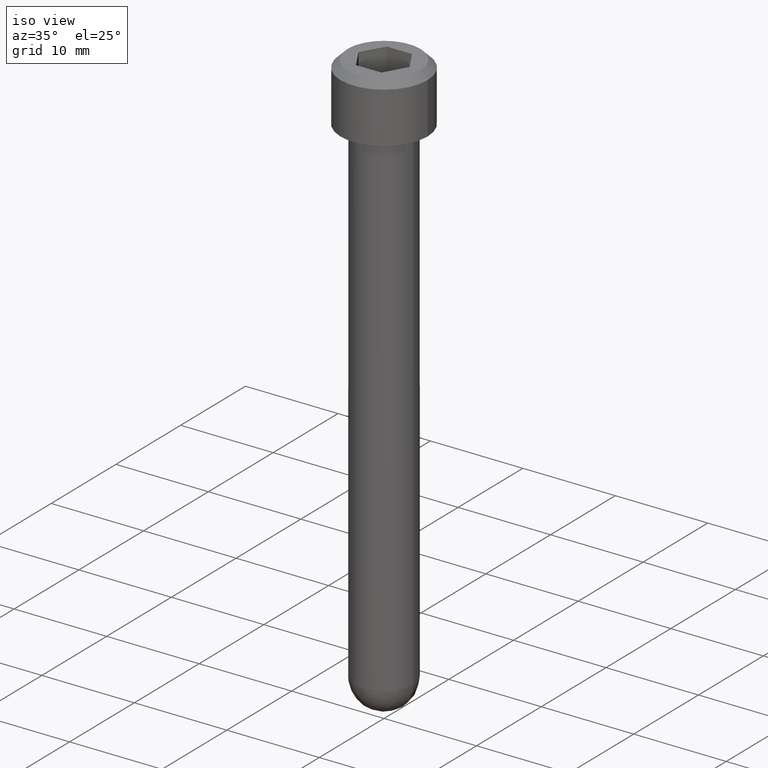
[diagram: clean part render]
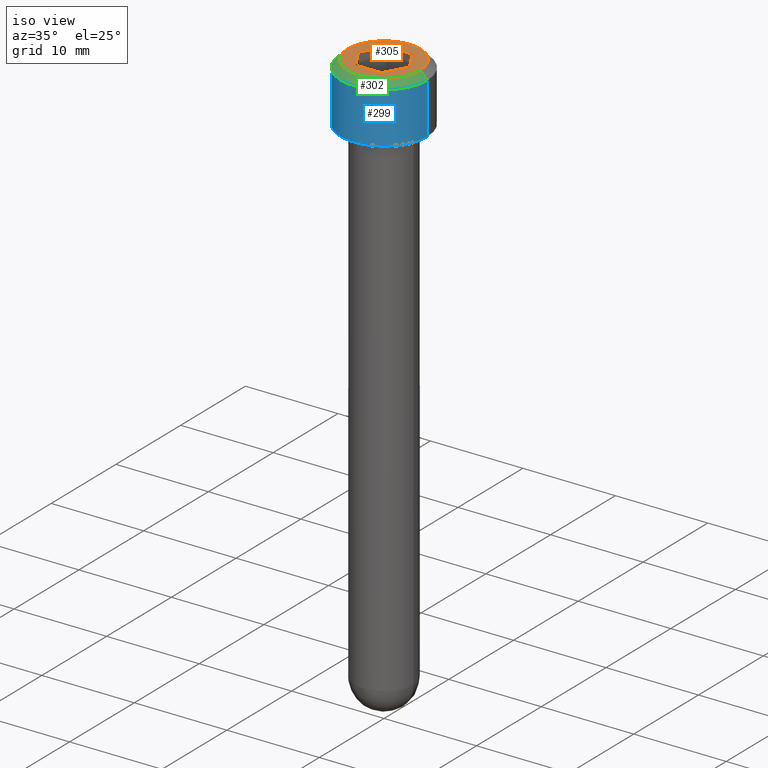
[diagram: same view with three faces highlighted in distinct colors, each labeled with its STEP entity id]
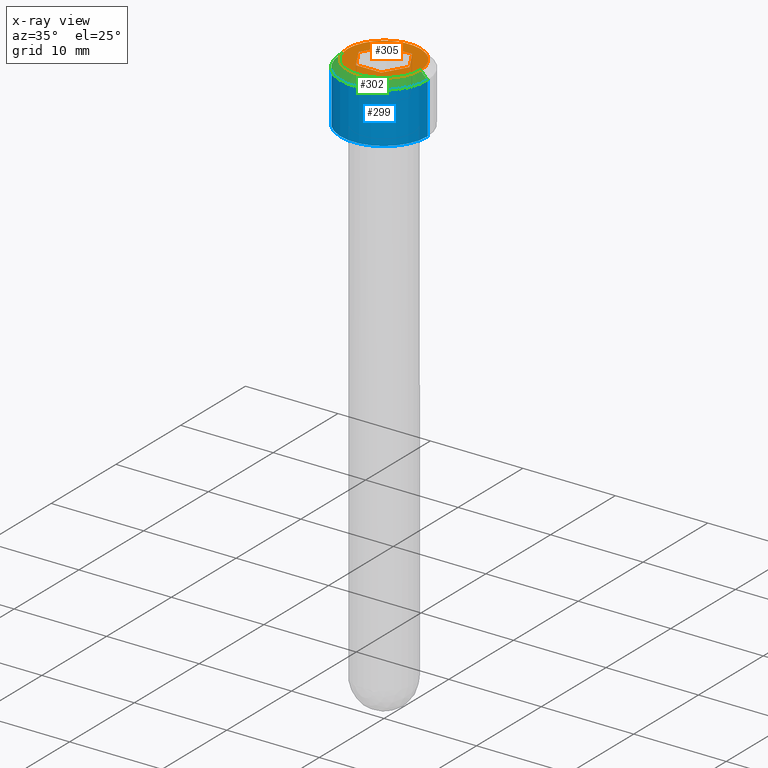
[diagram: x-ray of the same camera — body ghosted, the three highlighted faces saturated]
A machine part, iso view with three faces highlighted in distinct colors.
The next image is the same camera in x-ray (body ghosted, the three faces saturated) — at least one of them is partly hidden behind the body in this view.
Their STEP definitions:

[orange] entity #305 — the highlighted planar face has unit normal (0, 0, 1).
#12 = EDGE_CURVE ( 'NONE', #194, #195, #501, .T. ) ;
#22 = AXIS2_PLACEMENT_3D ( 'NONE', #237, #238, #210 ) ;
#29 = AXIS2_PLACEMENT_3D ( 'NONE', #151, #202, #201 ) ;
#33 = AXIS2_PLACEMENT_3D ( 'NONE', #80, #102, #161 ) ;
#36 = EDGE_CURVE ( 'NONE', #189, #115, #421, .T. ) ;
#38 = EDGE_CURVE ( 'NONE', #177, #194, #474, .T. ) ;
#42 = EDGE_CURVE ( 'NONE', #195, #79, #428, .T. ) ;
#50 = EDGE_CURVE ( 'NONE', #115, #189, #333, .T. ) ;
#51 = EDGE_CURVE ( 'NONE', #208, #211, #381, .T. ) ;
#52 = EDGE_CURVE ( 'NONE', #79, #208, #459, .T. ) ;
#53 = EDGE_CURVE ( 'NONE', #211, #177, #356, .T. ) ;
#79 = VERTEX_POINT ( 'NONE', #249 ) ;
#80 = CARTESIAN_POINT ( 'NONE',  ( 0.0000000000000000000, 0.0000000000000000000, 0.0000000000000000000 ) ) ;
#102 = DIRECTION ( 'NONE',  ( 0.0000000000000000000, 0.0000000000000000000, 1.000000000000000000 ) ) ;
#113 = CARTESIAN_POINT ( 'NONE',  ( 0.05412658773652740500, 0.09375000000000002800, 0.0000000000000000000 ) ) ;
#114 = CARTESIAN_POINT ( 'NONE',  ( -0.05412658773652744700, 0.09375000000000002800, 0.0000000000000000000 ) ) ;
#115 = VERTEX_POINT ( 'NONE', #206 ) ;
#124 = CARTESIAN_POINT ( 'NONE',  ( -0.05412658773652744700, 0.09375000000000002800, 0.0000000000000000000 ) ) ;
#125 = CARTESIAN_POINT ( 'NONE',  ( -0.1082531754730548500, -1.708292841017771400E-017, 0.0000000000000000000 ) ) ;
#149 = DIRECTION ( 'NONE',  ( -0.4999999999999998300, -0.8660254037844388200, 0.0000000000000000000 ) ) ;
#151 = CARTESIAN_POINT ( 'NONE',  ( 0.0000000000000000000, 0.0000000000000000000, 0.0000000000000000000 ) ) ;
#158 = CARTESIAN_POINT ( 'NONE',  ( 0.1082531754730548800, 0.0000000000000000000, 0.0000000000000000000 ) ) ;
#161 = DIRECTION ( 'NONE',  ( 1.000000000000000000, 0.0000000000000000000, 0.0000000000000000000 ) ) ;
#163 = CARTESIAN_POINT ( 'NONE',  ( -0.05412658773652741900, -0.09375000000000002800, 0.0000000000000000000 ) ) ;
#166 = CARTESIAN_POINT ( 'NONE',  ( 0.05412658773652744700, -0.09375000000000002800, 0.0000000000000000000 ) ) ;
#177 = VERTEX_POINT ( 'NONE', #113 ) ;
#182 = CARTESIAN_POINT ( 'NONE',  ( 0.05412658773652740500, 0.09375000000000002800, 0.0000000000000000000 ) ) ;
#189 = VERTEX_POINT ( 'NONE', #198 ) ;
#194 = VERTEX_POINT ( 'NONE', #124 ) ;
#195 = VERTEX_POINT ( 'NONE', #125 ) ;
#198 = CARTESIAN_POINT ( 'NONE',  ( -0.1549999999999999400, 0.0000000000000000000, 0.0000000000000000000 ) ) ;
#201 = DIRECTION ( 'NONE',  ( 1.000000000000000000, 0.0000000000000000000, -0.0000000000000000000 ) ) ;
#202 = DIRECTION ( 'NONE',  ( 0.0000000000000000000, 0.0000000000000000000, 1.000000000000000000 ) ) ;
#206 = CARTESIAN_POINT ( 'NONE',  ( 0.1549999999999999400, 2.081899558550500500E-017, 0.0000000000000000000 ) ) ;
#208 = VERTEX_POINT ( 'NONE', #166 ) ;
#210 = DIRECTION ( 'NONE',  ( 1.000000000000000000, 0.0000000000000000000, 0.0000000000000000000 ) ) ;
#211 = VERTEX_POINT ( 'NONE', #158 ) ;
#230 = DIRECTION ( 'NONE',  ( -1.000000000000000000, 0.0000000000000000000, 0.0000000000000000000 ) ) ;
#237 = CARTESIAN_POINT ( 'NONE',  ( 0.0000000000000000000, 0.0000000000000000000, 0.0000000000000000000 ) ) ;
#238 = DIRECTION ( 'NONE',  ( 0.0000000000000000000, 0.0000000000000000000, 1.000000000000000000 ) ) ;
#244 = DIRECTION ( 'NONE',  ( -0.5000000000000001100, 0.8660254037844384900, 0.0000000000000000000 ) ) ;
#246 = DIRECTION ( 'NONE',  ( 1.000000000000000000, 0.0000000000000000000, 0.0000000000000000000 ) ) ;
#247 = CARTESIAN_POINT ( 'NONE',  ( 0.1082531754730548500, 6.797912345839970600E-018, 0.0000000000000000000 ) ) ;
#249 = CARTESIAN_POINT ( 'NONE',  ( -0.05412658773652741900, -0.09375000000000002800, 0.0000000000000000000 ) ) ;
#251 = DIRECTION ( 'NONE',  ( 0.5000000000000002200, -0.8660254037844386000, 0.0000000000000000000 ) ) ;
#252 = CARTESIAN_POINT ( 'NONE',  ( -0.1082531754730548500, -1.708292841017771400E-017, 0.0000000000000000000 ) ) ;
#256 = CARTESIAN_POINT ( 'NONE',  ( 0.05412658773652744700, -0.09375000000000002800, 0.0000000000000000000 ) ) ;
#257 = DIRECTION ( 'NONE',  ( 0.4999999999999998300, 0.8660254037844388200, 0.0000000000000000000 ) ) ;
#295 = PLANE ( 'NONE',  #29 ) ;
#305 = ADVANCED_FACE ( 'NONE', ( #447, #365 ), #295, .T. ) ;
#321 = EDGE_LOOP ( 'NONE', ( #495, #426 ) ) ;
#333 = CIRCLE ( 'NONE', #33, 0.1549999999999999400 ) ;
#349 = VECTOR ( 'NONE', #246, 39.37007874015748100 ) ;
#354 = EDGE_LOOP ( 'NONE', ( #466, #506, #386, #511, #510, #393 ) ) ;
#356 = LINE ( 'NONE', #247, #494 ) ;
#365 = FACE_BOUND ( 'NONE', #354, .T. ) ;
#381 = LINE ( 'NONE', #256, #432 ) ;
#386 = ORIENTED_EDGE ( 'NONE', *, *, #42, .F. ) ;
#393 = ORIENTED_EDGE ( 'NONE', *, *, #53, .F. ) ;
#415 = VECTOR ( 'NONE', #230, 39.37007874015748100 ) ;
#421 = CIRCLE ( 'NONE', #22, 0.1549999999999999400 ) ;
#426 = ORIENTED_EDGE ( 'NONE', *, *, #50, .T. ) ;
#428 = LINE ( 'NONE', #252, #502 ) ;
#432 = VECTOR ( 'NONE', #257, 39.37007874015748100 ) ;
#447 = FACE_OUTER_BOUND ( 'NONE', #321, .T. ) ;
#451 = VECTOR ( 'NONE', #149, 39.37007874015748900 ) ;
#459 = LINE ( 'NONE', #163, #349 ) ;
#466 = ORIENTED_EDGE ( 'NONE', *, *, #51, .F. ) ;
#474 = LINE ( 'NONE', #182, #415 ) ;
#494 = VECTOR ( 'NONE', #244, 39.37007874015748900 ) ;
#495 = ORIENTED_EDGE ( 'NONE', *, *, #36, .T. ) ;
#501 = LINE ( 'NONE', #114, #451 ) ;
#502 = VECTOR ( 'NONE', #251, 39.37007874015747400 ) ;
#506 = ORIENTED_EDGE ( 'NONE', *, *, #52, .F. ) ;
#510 = ORIENTED_EDGE ( 'NONE', *, *, #38, .F. ) ;
#511 = ORIENTED_EDGE ( 'NONE', *, *, #12, .F. ) ;

[blue] entity #299 — the highlighted cylindrical surface (partial cylindrical patch) has radius 4.699 mm, axis along (0, 0, 1).
#3 = AXIS2_PLACEMENT_3D ( 'NONE', #85, #119, #131 ) ;
#5 = EDGE_CURVE ( 'NONE', #193, #83, #427, .T. ) ;
#8 = EDGE_CURVE ( 'NONE', #174, #263, #445, .T. ) ;
#18 = AXIS2_PLACEMENT_3D ( 'NONE', #138, #162, #130 ) ;
#40 = EDGE_CURVE ( 'NONE', #174, #83, #388, .T. ) ;
#56 = EDGE_CURVE ( 'NONE', #263, #193, #456, .T. ) ;
#61 = AXIS2_PLACEMENT_3D ( 'NONE', #156, #153, #143 ) ;
#83 = VERTEX_POINT ( 'NONE', #117 ) ;
#85 = CARTESIAN_POINT ( 'NONE',  ( 0.0000000000000000000, 0.0000000000000000000, -0.03000000000000012400 ) ) ;
#95 = CARTESIAN_POINT ( 'NONE',  ( 0.1850000000000000000, 0.0000000000000000000, -0.03000000000000012400 ) ) ;
#98 = CARTESIAN_POINT ( 'NONE',  ( 0.1850000000000000000, 0.0000000000000000000, -0.2470000000000000000 ) ) ;
#117 = CARTESIAN_POINT ( 'NONE',  ( -0.1850000000000000000, 2.265596578422603000E-017, -0.03000000000000012400 ) ) ;
#119 = DIRECTION ( 'NONE',  ( 0.0000000000000000000, 0.0000000000000000000, -1.000000000000000000 ) ) ;
#121 = CARTESIAN_POINT ( 'NONE',  ( -0.1850000000000000000, 2.265596578422603000E-017, -0.2470000000000000000 ) ) ;
#130 = DIRECTION ( 'NONE',  ( 1.000000000000000000, 0.0000000000000000000, 0.0000000000000000000 ) ) ;
#131 = DIRECTION ( 'NONE',  ( 1.000000000000000000, 0.0000000000000000000, 0.0000000000000000000 ) ) ;
#138 = CARTESIAN_POINT ( 'NONE',  ( 0.0000000000000000000, 0.0000000000000000000, -0.2470000000000000000 ) ) ;
#141 = CARTESIAN_POINT ( 'NONE',  ( 0.1850000000000000000, 0.0000000000000000000, -0.2470000000000000000 ) ) ;
#143 = DIRECTION ( 'NONE',  ( 1.000000000000000000, 0.0000000000000000000, 0.0000000000000000000 ) ) ;
#153 = DIRECTION ( 'NONE',  ( 0.0000000000000000000, 0.0000000000000000000, 1.000000000000000000 ) ) ;
#156 = CARTESIAN_POINT ( 'NONE',  ( 0.0000000000000000000, 0.0000000000000000000, -0.2470000000000000000 ) ) ;
#162 = DIRECTION ( 'NONE',  ( 0.0000000000000000000, 0.0000000000000000000, 1.000000000000000000 ) ) ;
#174 = VERTEX_POINT ( 'NONE', #121 ) ;
#193 = VERTEX_POINT ( 'NONE', #95 ) ;
#232 = CARTESIAN_POINT ( 'NONE',  ( -0.1850000000000000000, 2.265596578422603000E-017, -0.2470000000000000000 ) ) ;
#236 = DIRECTION ( 'NONE',  ( 0.0000000000000000000, 0.0000000000000000000, 1.000000000000000000 ) ) ;
#242 = DIRECTION ( 'NONE',  ( 0.0000000000000000000, 0.0000000000000000000, 1.000000000000000000 ) ) ;
#263 = VERTEX_POINT ( 'NONE', #141 ) ;
#299 = ADVANCED_FACE ( 'Face2', ( #376 ), #418, .T. ) ;
#325 = ORIENTED_EDGE ( 'NONE', *, *, #5, .T. ) ;
#376 = FACE_OUTER_BOUND ( 'NONE', #439, .T. ) ;
#388 = LINE ( 'NONE', #232, #437 ) ;
#403 = ORIENTED_EDGE ( 'NONE', *, *, #56, .T. ) ;
#418 = CYLINDRICAL_SURFACE ( 'NONE', #61, 0.1850000000000000000 ) ;
#427 = CIRCLE ( 'NONE', #3, 0.1850000000000000000 ) ;
#437 = VECTOR ( 'NONE', #242, 39.37007874015748100 ) ;
#439 = EDGE_LOOP ( 'NONE', ( #463, #505, #403, #325 ) ) ;
#445 = CIRCLE ( 'NONE', #18, 0.1850000000000000000 ) ;
#456 = LINE ( 'NONE', #98, #498 ) ;
#463 = ORIENTED_EDGE ( 'NONE', *, *, #40, .F. ) ;
#498 = VECTOR ( 'NONE', #236, 39.37007874015748100 ) ;
#505 = ORIENTED_EDGE ( 'NONE', *, *, #8, .T. ) ;

[green] entity #302 — the highlighted conical surface has half-angle 45 deg.
#3 = AXIS2_PLACEMENT_3D ( 'NONE', #85, #119, #131 ) ;
#5 = EDGE_CURVE ( 'NONE', #193, #83, #427, .T. ) ;
#15 = AXIS2_PLACEMENT_3D ( 'NONE', #282, #279, #278 ) ;
#22 = AXIS2_PLACEMENT_3D ( 'NONE', #237, #238, #210 ) ;
#36 = EDGE_CURVE ( 'NONE', #189, #115, #421, .T. ) ;
#49 = EDGE_CURVE ( 'NONE', #189, #83, #492, .T. ) ;
#76 = EDGE_CURVE ( 'NONE', #115, #193, #509, .T. ) ;
#83 = VERTEX_POINT ( 'NONE', #117 ) ;
#85 = CARTESIAN_POINT ( 'NONE',  ( 0.0000000000000000000, 0.0000000000000000000, -0.03000000000000012400 ) ) ;
#87 = CARTESIAN_POINT ( 'NONE',  ( -0.1549999999999999400, 0.0000000000000000000, 0.0000000000000000000 ) ) ;
#95 = CARTESIAN_POINT ( 'NONE',  ( 0.1850000000000000000, 0.0000000000000000000, -0.03000000000000012400 ) ) ;
#103 = CARTESIAN_POINT ( 'NONE',  ( 0.1549999999999999400, 1.898202538678397000E-017, 0.0000000000000000000 ) ) ;
#115 = VERTEX_POINT ( 'NONE', #206 ) ;
#117 = CARTESIAN_POINT ( 'NONE',  ( -0.1850000000000000000, 2.265596578422603000E-017, -0.03000000000000012400 ) ) ;
#119 = DIRECTION ( 'NONE',  ( 0.0000000000000000000, 0.0000000000000000000, -1.000000000000000000 ) ) ;
#131 = DIRECTION ( 'NONE',  ( 1.000000000000000000, 0.0000000000000000000, 0.0000000000000000000 ) ) ;
#152 = DIRECTION ( 'NONE',  ( -0.7071067811865466800, 0.0000000000000000000, -0.7071067811865483500 ) ) ;
#189 = VERTEX_POINT ( 'NONE', #198 ) ;
#193 = VERTEX_POINT ( 'NONE', #95 ) ;
#196 = DIRECTION ( 'NONE',  ( 0.7071067811865466800, 8.659560562354923000E-017, -0.7071067811865483500 ) ) ;
#198 = CARTESIAN_POINT ( 'NONE',  ( -0.1549999999999999400, 0.0000000000000000000, 0.0000000000000000000 ) ) ;
#206 = CARTESIAN_POINT ( 'NONE',  ( 0.1549999999999999400, 2.081899558550500500E-017, 0.0000000000000000000 ) ) ;
#210 = DIRECTION ( 'NONE',  ( 1.000000000000000000, 0.0000000000000000000, 0.0000000000000000000 ) ) ;
#237 = CARTESIAN_POINT ( 'NONE',  ( 0.0000000000000000000, 0.0000000000000000000, 0.0000000000000000000 ) ) ;
#238 = DIRECTION ( 'NONE',  ( 0.0000000000000000000, 0.0000000000000000000, 1.000000000000000000 ) ) ;
#278 = DIRECTION ( 'NONE',  ( -1.000000000000000000, 0.0000000000000000000, 0.0000000000000000000 ) ) ;
#279 = DIRECTION ( 'NONE',  ( 0.0000000000000000000, 0.0000000000000000000, -1.000000000000000000 ) ) ;
#282 = CARTESIAN_POINT ( 'NONE',  ( 0.0000000000000000000, 0.0000000000000000000, 0.0000000000000000000 ) ) ;
#302 = ADVANCED_FACE ( 'NONE', ( #389 ), #379, .T. ) ;
#335 = EDGE_LOOP ( 'NONE', ( #434, #460, #433, #358 ) ) ;
#358 = ORIENTED_EDGE ( 'NONE', *, *, #5, .F. ) ;
#379 = CONICAL_SURFACE ( 'NONE', #15, 0.1549999999999999400, 0.7853981633974471700 ) ;
#389 = FACE_OUTER_BOUND ( 'NONE', #335, .T. ) ;
#391 = VECTOR ( 'NONE', #152, 39.37007874015748100 ) ;
#411 = VECTOR ( 'NONE', #196, 39.37007874015748100 ) ;
#421 = CIRCLE ( 'NONE', #22, 0.1549999999999999400 ) ;
#427 = CIRCLE ( 'NONE', #3, 0.1850000000000000000 ) ;
#433 = ORIENTED_EDGE ( 'NONE', *, *, #49, .T. ) ;
#434 = ORIENTED_EDGE ( 'NONE', *, *, #76, .F. ) ;
#460 = ORIENTED_EDGE ( 'NONE', *, *, #36, .F. ) ;
#492 = LINE ( 'NONE', #87, #391 ) ;
#509 = LINE ( 'NONE', #103, #411 ) ;